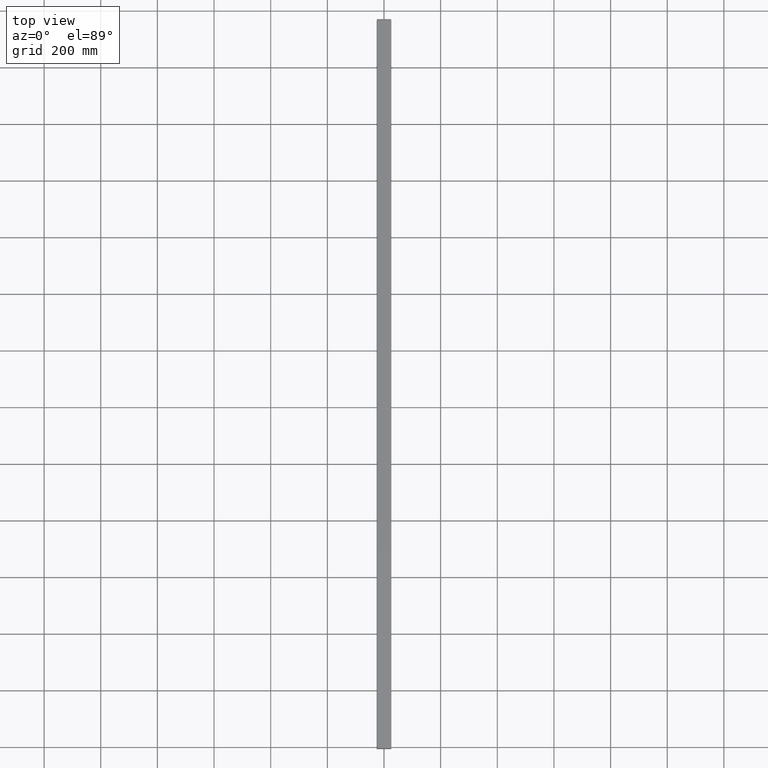
[diagram: clean part render]
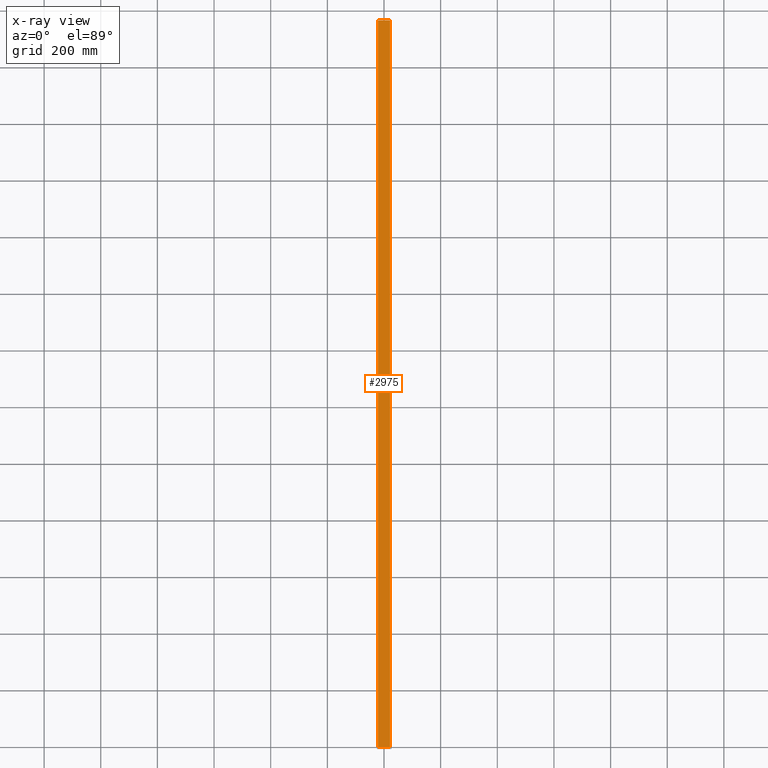
[diagram: x-ray — body ghosted, one internal face saturated and labeled with its STEP entity id]
A machine part, top view, then the same camera in x-ray: the body is ghosted and one INTERNAL B-rep face — a face not visible from any outside direction — is saturated and labeled: STEP entity #2975.
In plain terms, the highlighted planar face has unit normal (0, 0, 1).
Its self-contained STEP definition (entity closure, byte-faithful):
#65 = ORIENTED_EDGE ( 'NONE', *, *, #3906, .T. ) ;
#91 = CARTESIAN_POINT ( 'NONE',  ( 0.9253000000000001224, 0.8505999999999999117, -50.50000000000000000 ) ) ;
#147 = CARTESIAN_POINT ( 'NONE',  ( 0.9253000000000001224, 0.8505999999999999117, 50.50000000000000000 ) ) ;
#185 = ORIENTED_EDGE ( 'NONE', *, *, #1012, .F. ) ;
#225 = DIRECTION ( 'NONE',  ( -0.000000000000000000, 1.000000000000000000, -0.000000000000000000 ) ) ;
#312 = VECTOR ( 'NONE', #1539, 39.37007874015748143 ) ;
#478 = LINE ( 'NONE', #147, #2903 ) ;
#656 = VERTEX_POINT ( 'NONE', #1151 ) ;
#785 = VECTOR ( 'NONE', #1546, 39.37007874015748143 ) ;
#1012 = EDGE_CURVE ( 'NONE', #3474, #1607, #3426, .T. ) ;
#1151 = CARTESIAN_POINT ( 'NONE',  ( 0.9253000000000001224, 0.8505999999999999117, 50.50000000000000000 ) ) ;
#1207 = FACE_OUTER_BOUND ( 'NONE', #3731, .T. ) ;
#1313 = VECTOR ( 'NONE', #3313, 39.37007874015748143 ) ;
#1416 = DIRECTION ( 'NONE',  ( -1.000000000000000000, 0.000000000000000000, 0.000000000000000000 ) ) ;
#1473 = LINE ( 'NONE', #2745, #785 ) ;
#1539 = DIRECTION ( 'NONE',  ( -0.000000000000000000, 1.000000000000000000, -0.000000000000000000 ) ) ;
#1546 = DIRECTION ( 'NONE',  ( -0.000000000000000000, -0.000000000000000000, -1.000000000000000000 ) ) ;
#1593 = ORIENTED_EDGE ( 'NONE', *, *, #3880, .T. ) ;
#1607 = VERTEX_POINT ( 'NONE', #3095 ) ;
#1650 = ORIENTED_EDGE ( 'NONE', *, *, #2986, .F. ) ;
#1770 = LINE ( 'NONE', #3037, #1313 ) ;
#2422 = DIRECTION ( 'NONE',  ( 0.000000000000000000, 0.000000000000000000, 1.000000000000000000 ) ) ;
#2490 = VERTEX_POINT ( 'NONE', #2746 ) ;
#2727 = PLANE ( 'NONE',  #4103 ) ;
#2745 = CARTESIAN_POINT ( 'NONE',  ( 0.9253000000000001224, -0.8505999999999999117, 50.50000000000000000 ) ) ;
#2746 = CARTESIAN_POINT ( 'NONE',  ( 0.9253000000000001224, -0.8505999999999999117, 50.50000000000000000 ) ) ;
#2903 = VECTOR ( 'NONE', #225, 39.37007874015748143 ) ;
#2975 = ADVANCED_FACE ( 'NONE', ( #1207 ), #2727, .T. ) ;
#2986 = EDGE_CURVE ( 'NONE', #2490, #3474, #1473, .T. ) ;
#3037 = CARTESIAN_POINT ( 'NONE',  ( 0.9253000000000001224, 0.8505999999999999117, 50.50000000000000000 ) ) ;
#3095 = CARTESIAN_POINT ( 'NONE',  ( 0.9253000000000001224, 0.8505999999999999117, -50.50000000000000000 ) ) ;
#3313 = DIRECTION ( 'NONE',  ( -0.000000000000000000, -0.000000000000000000, -1.000000000000000000 ) ) ;
#3426 = LINE ( 'NONE', #91, #312 ) ;
#3474 = VERTEX_POINT ( 'NONE', #3940 ) ;
#3731 = EDGE_LOOP ( 'NONE', ( #185, #1650, #65, #1593 ) ) ;
#3880 = EDGE_CURVE ( 'NONE', #656, #1607, #1770, .T. ) ;
#3906 = EDGE_CURVE ( 'NONE', #2490, #656, #478, .T. ) ;
#3940 = CARTESIAN_POINT ( 'NONE',  ( 0.9253000000000001224, -0.8505999999999999117, -50.50000000000000000 ) ) ;
#4002 = CARTESIAN_POINT ( 'NONE',  ( 0.9253000000000001224, 0.8505999999999999117, 50.50000000000000000 ) ) ;
#4103 = AXIS2_PLACEMENT_3D ( 'NONE', #4002, #1416, #2422 ) ;